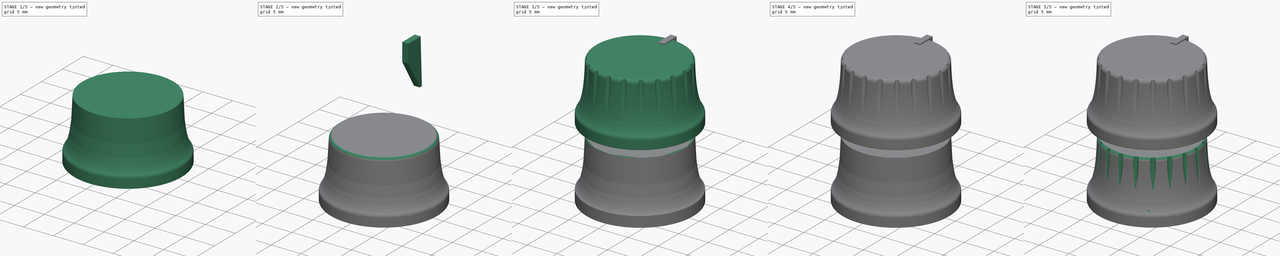
[diagram: build sequence overview — one tinted view per stage of 5, left to right]
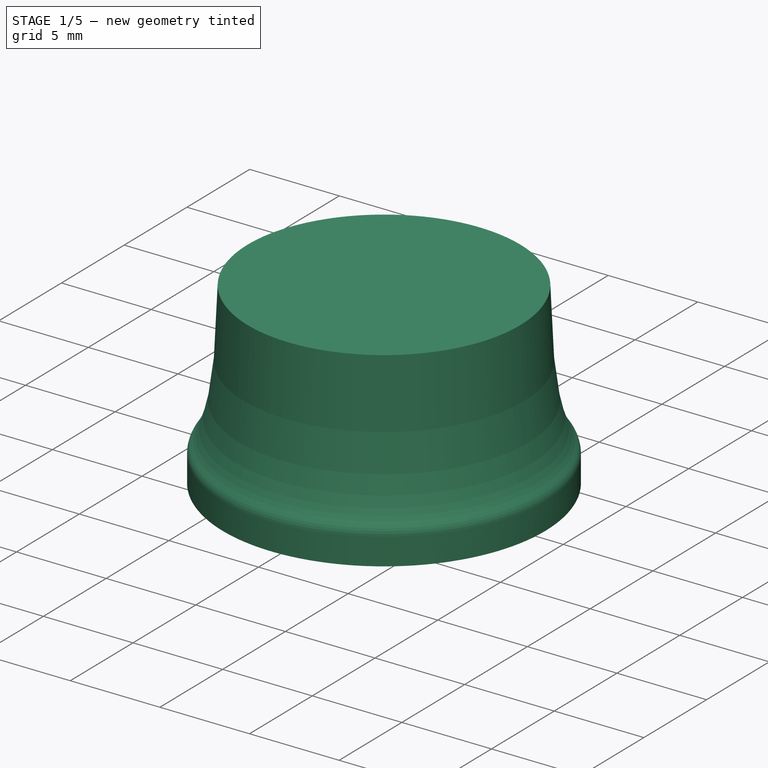
[diagram: stage 1 of 5 — iso view after this stage's code; geometry added in this stage tinted green]
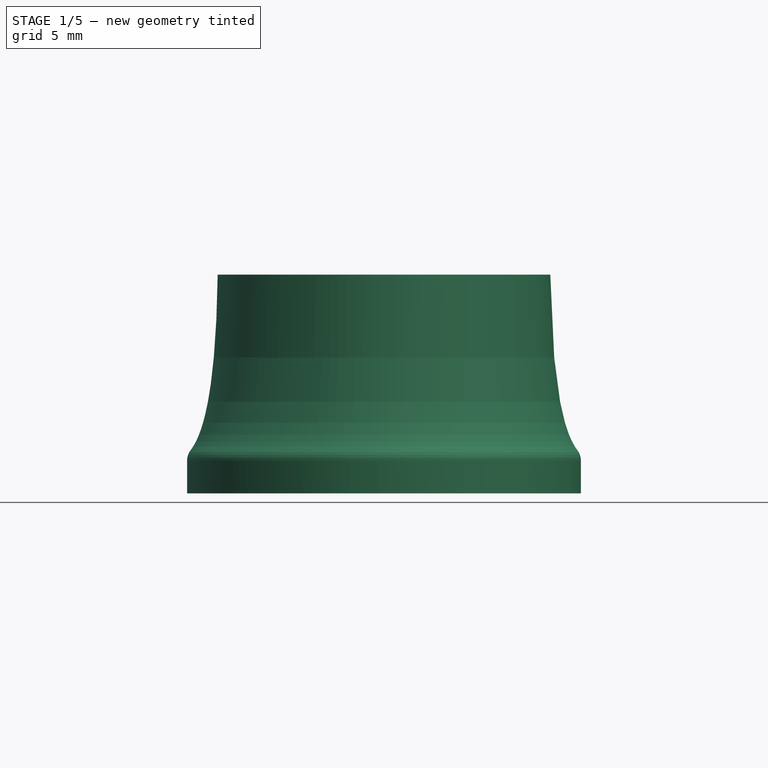
[diagram: stage 1 of 5 — front view after this stage's code; geometry added in this stage tinted green]
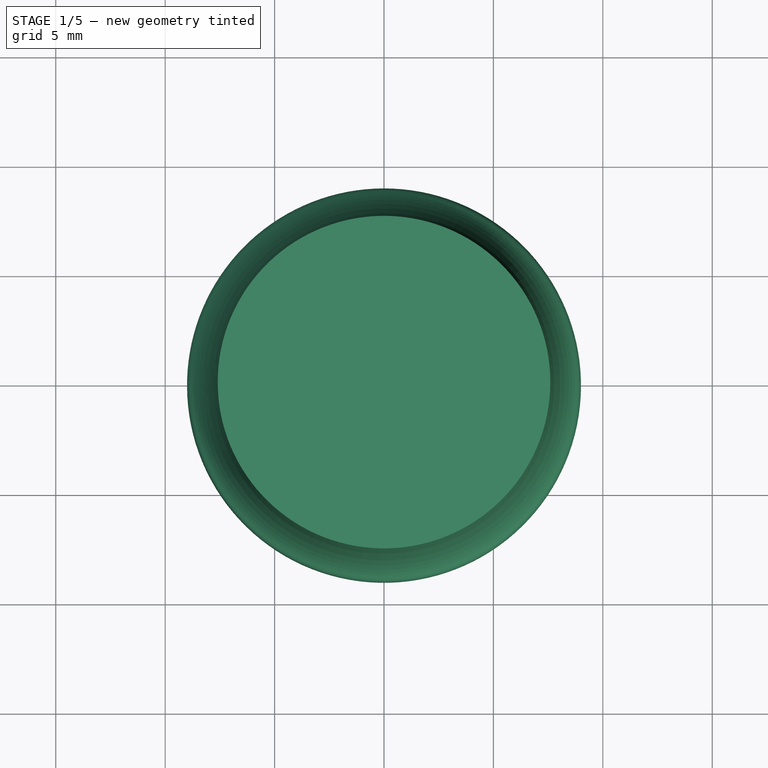
[diagram: stage 1 of 5 — top view after this stage's code; geometry added in this stage tinted green]
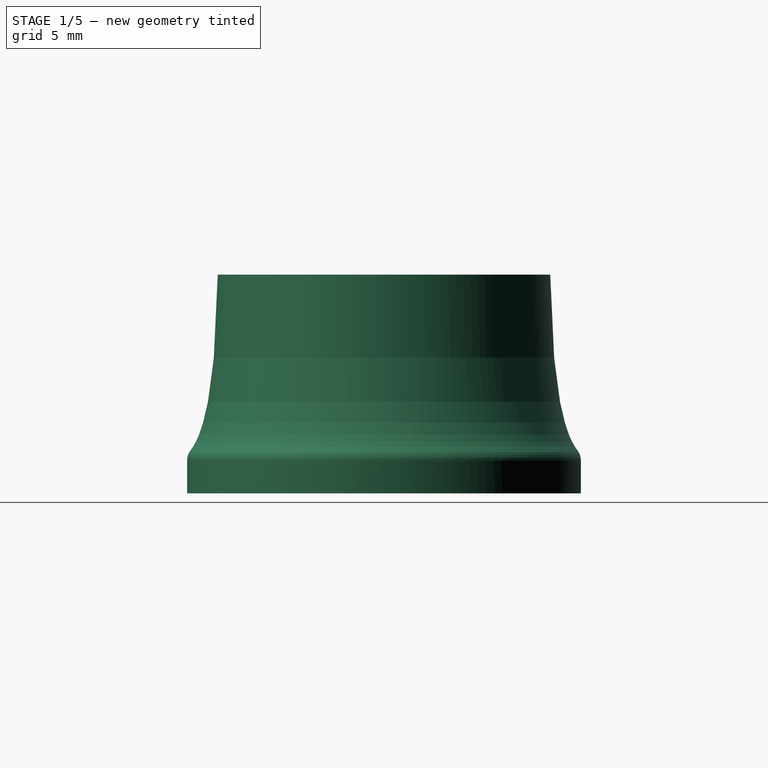
[diagram: stage 1 of 5 — right view after this stage's code; geometry added in this stage tinted green]
FCSTD DOCUMENT  (FreeCAD 0.18R16146 (Git))
Label: PotiCapShortV1_0
License: All rights reserved
LicenseURL: http://en.wikipedia.org/wiki/All_rights_reserved
objects: Sketcher::SketchObject×12, PartDesign::Fillet×12, PartDesign::Pad×8, PartDesign::Plane×5, PartDesign::Body×5, PartDesign::PolarPattern×4, PartDesign::Revolution×2, PartDesign::Line×2, PartDesign::CoordinateSystem×2, PartDesign::Groove×2, Part::Feature×1, Part::Compound×1
note: 68 computed .brp shape members not serialized (recipe doc carries the construction recipe); baked Part::Feature solids carry a one-line shape summary decoded from their .brp

FEATURE [PartDesign::Body] Body002  label="dot"
  Group = -> [Sketch006,Pad003]
  Origin = -> Origin002
  Tip = -> Pad003
FEATURE [Sketcher::SketchObject] Sketch007
  MapMode = 5
  Placement = pos=(0,0,0) rot=(0.57735,0.57735,0.57735;2.0944rad)
  Support = -> [YZ_Plane003]
  sketch-geometry (4):
    g0: LineSegment StartX=-6.9 StartY=9.1 StartZ=0 EndX=-3.7 EndY=9.1 EndZ=0
    g1: LineSegment StartX=-6.9 StartY=9.1 StartZ=0 EndX=-8.2 EndY=1.7 EndZ=0
    g2: LineSegment StartX=-8.2 StartY=1.7 StartZ=0 EndX=-3.7 EndY=1.7 EndZ=0
    g3: LineSegment StartX=-3.7 StartY=9.1 StartZ=0 EndX=-3.7 EndY=1.7 EndZ=0
  constraints (12):
    c: Horizontal(g0)
    c: Coincident(g1,g0)
    c: Coincident(g2,g1)
    c: Horizontal(g2)
    c: Coincident(g3,g0)
    c: Coincident(g3,g2)
    c: Vertical(g3)
    c: DistanceX(g0,g-1) = 3.7
    c: DistanceX(g0,g0) = 3.2
    c: DistanceX(g2,g2) = 4.5
    c: DistanceY(g-1,g0) = 9.1
    c: DistanceY(g3,g3) = 7.4
FEATURE [Sketcher::SketchObject] Sketch008
  MapMode = 5
  Placement = pos=(0,0,0) rot=(1,0,0;1.5708rad)
  Support = -> [XZ_Plane003]
  sketch-geometry (22):
    g0: LineSegment StartX=0 StartY=10 StartZ=0 EndX=-7.6 EndY=10 EndZ=0
    g1: LineSegment StartX=-9 StartY=0 StartZ=0 EndX=-9 EndY=1.8 EndZ=0
    g2: Circle [constr] CenterX=-7.6 CenterY=10 CenterZ=0 NormalX=0 NormalY=0 NormalZ=1 AngleXU=0 Radius=1
    g3: Circle [constr] CenterX=-7.7 CenterY=3 CenterZ=0 NormalX=0 NormalY=0 NormalZ=1 AngleXU=0 Radius=1
    g4: Circle [constr] CenterX=-9 CenterY=1.8 CenterZ=0 NormalX=0 NormalY=0 NormalZ=1 AngleXU=0 Radius=1
    g5: BSplineCurve PolesCount=3 KnotsCount=2 Degree=2 IsPeriodic=0
    g6: GeomPoint [constr] X=-7.6 Y=10 Z=0
    g7: GeomPoint [constr] X=-9 Y=1.8 Z=0
    g8: LineSegment StartX=0 StartY=10 StartZ=0 EndX=0 EndY=9 EndZ=0
    g9: LineSegment StartX=0 StartY=9 StartZ=0 EndX=-6.6 EndY=9 EndZ=0
    g10: Circle [constr] CenterX=-6.6 CenterY=9 CenterZ=0 NormalX=0 NormalY=0 NormalZ=1 AngleXU=0 Radius=0.9
    g11: Circle [constr] CenterX=-6.77152 CenterY=2.62861 CenterZ=0 NormalX=0 NormalY=0 NormalZ=1 AngleXU=0 Radius=0.9
    g12: Circle [constr] CenterX=-8 CenterY=1.4 CenterZ=0 NormalX=0 NormalY=0 NormalZ=1 AngleXU=0 Radius=0.9
    g13: BSplineCurve PolesCount=3 KnotsCount=2 Degree=2 IsPeriodic=0
    g14: GeomPoint [constr] X=-6.6 Y=9 Z=0
    g15: GeomPoint [constr] X=-8 Y=1.4 Z=0
    g16: LineSegment StartX=-9 StartY=0 StartZ=0 EndX=-8 EndY=0 EndZ=0
    g17: LineSegment StartX=-8 StartY=1.4 StartZ=0 EndX=-8 EndY=0 EndZ=0
    g18: LineSegment [constr] StartX=-7.6 StartY=10 StartZ=0 EndX=-6.6 EndY=10 EndZ=0
    g19: LineSegment [constr] StartX=-6.6 StartY=10 StartZ=0 EndX=-6.6 EndY=9 EndZ=0
    g20: LineSegment [constr] StartX=-7.7 StartY=3 StartZ=0 EndX=-6.77152 EndY=2.62861 EndZ=0
    g21: LineSegment [constr] StartX=-9 StartY=1.8 StartZ=0 EndX=-8 EndY=1.4 EndZ=0
  constraints (53):
    c: PointOnObject(g1,g-1)
    c: PointOnObject(g0,g-2)
    c: Horizontal(g0)
    c: DistanceY(g-1,g0) = 10
    c: Vertical(g1)
    c: Coincident(g5,g0)
    c: Radius(g2) = 1
    c: Equal(g2,g3)
    c: Equal(g2,g4)
    c: Coincident(g5,g1)
    c: InternalAlignment(g2,g5)
    c: InternalAlignment(g3,g5)
    c: InternalAlignment(g4,g5)
    c: InternalAlignment(g6,g5)
    c: InternalAlignment(g7,g5)
    c: DistanceX(g1,g-1) = 9
    c: DistanceX(g0,g0) = 7.6
    c: DistanceY(g1,g1) = 1.8
    c: DistanceY(g3) = 3
    c: DistanceX(g3,g-1) = 7.7
    c: Coincident(g0,g8)
    c: Vertical(g8)
    c: Coincident(g8,g9)
    c: Horizontal(g9)
    c: Coincident(g13,g9)
    c: Radius(g10) = 0.9
    c: Equal(g10,g11)
    c: Equal(g10,g12)
    c: InternalAlignment(g10,g13)
    c: InternalAlignment(g11,g13)
    c: InternalAlignment(g12,g13)
    c: InternalAlignment(g14,g13)
    c: InternalAlignment(g15,g13)
    c: Coincident(g16,g1)
    c: Horizontal(g16)
    c: Coincident(g17,g13)
    c: Coincident(g17,g16)
    c: Vertical(g17)
    c: DistanceX(g16,g16) = 1
    c: Equal(g8,g16)
    c: Coincident(g18,g0)
    c: Equal(g18,g8)
    c: Coincident(g18,g19)
    c: Coincident(g19,g9)
    c: Vertical(g19)
    c: Horizontal(g18)
    c: Coincident(g20,g3)
    c: Coincident(g20,g11)
    c: Equal(g8,g20)
    c: DistanceY(g17,g17) = 1.4
    c: Coincident(g21,g1)
    c: Coincident(g21,g13)
    c: Parallel(g20,g21)
FEATURE [PartDesign::Revolution] Revolution001
  Angle = 360
  Axis = (0,-2e-16,1)
  Base = (0,0,0)
  Placement = pos=(0,0,0) rot=(1,0,0;1.5708rad)
  Profile = -> Sketch008
  ReferenceAxis = -> Sketch008 [V_Axis]
FEATURE [PartDesign::Body] Body004  label="dot001"
  Group = -> [Sketch012,Pad007]
  Origin = -> Origin004
  Tip = -> Pad007
FEATURE [PartDesign::Fillet] Fillet008
  Base = -> Revolution001 [Edge2]
  BaseFeature = -> Revolution001
  Placement = pos=(0,0,0) rot=(1,0,0;1.5708rad)
  Radius = 0.8
FEATURE [PartDesign::Pad] Pad006
  BaseFeature = -> Fillet008
  Length = 8.7
  Length2 = 100
  Placement = pos=(0,0,0) rot=(1,0,0;1.5708rad)
  Profile = -> Sketch010
  Type = 0
FEATURE [Sketcher::SketchObject] Sketch009
  MapMode = 5
  Placement = pos=(0,0,9) rot=(1,0,0;3.14159rad)
  Support = -> [Pad006]
  sketch-geometry (7):
    g0: LineSegment StartX=-2.6269 StartY=1.5 StartZ=0 EndX=2.6269 EndY=1.5 EndZ=0
    g1: GeomPoint X=0 Y=-3 Z=0
    g2: ArcOfCircle CenterX=0 CenterY=0 CenterZ=0 NormalX=0 NormalY=0 NormalZ=1 AngleXU=0 Radius=3.025 StartAngle=1.73685 EndAngle=2.62276
    g3: ArcOfCircle CenterX=0 CenterY=0 CenterZ=0 NormalX=0 NormalY=0 NormalZ=1 AngleXU=0 Radius=3.025 StartAngle=0.518834 EndAngle=1.40475
    g4: LineSegment StartX=-0.5 StartY=2.98339 StartZ=0 EndX=-0.5 EndY=3.99382 EndZ=0
    g5: LineSegment StartX=0.5 StartY=2.98339 StartZ=0 EndX=0.5 EndY=3.99382 EndZ=0
    g6: ArcOfCircle CenterX=0 CenterY=0 CenterZ=0 NormalX=0 NormalY=0 NormalZ=1 AngleXU=0 Radius=4.025 StartAngle=1.44625 EndAngle=1.69534
  constraints (20):
    c: Horizontal(g0)
    c: PointOnObject(g1,g-2)
    c: DistanceY(g1,g0) = 4.5
    c: Coincident(g2,g-1)
    c: Coincident(g2,g0)
    c: Coincident(g3,g2)
    c: Coincident(g3,g0)
    c: Coincident(g4,g2)
    c: Vertical(g4)
    c: Coincident(g5,g3)
    c: Vertical(g5)
    c: Coincident(g6,g2)
    c: Coincident(g6,g4)
    c: Diameter(g6) = 8.05
    c: Diameter(g3) = 6.05
    c: Equal(g3,g2)
    c: Equal(g4,g5)
    c: Coincident(g5,g6)
    c: DistanceX(g4,g5) = 1
    c: DistanceY(g1,g2) = 3
FEATURE [PartDesign::Pad] Pad005
  BaseFeature = -> Pad006
  Length = 7.77
  Length2 = 100
  Placement = pos=(0,0,0) rot=(1,0,0;1.5708rad)
  Profile = -> Sketch009
  Type = 0
FEATURE [PartDesign::Pad] Pad004
  BaseFeature = -> Pad005
  Length = 0.8
  Length2 = 0.5
  Midplane = true
  Placement = pos=(0,0,0) rot=(1,0,0;1.5708rad)
  Profile = -> Sketch007
  Type = 0
FEATURE [PartDesign::PolarPattern] PolarPattern003
  Angle = 360
  Axis = -> Z_Axis003
  BaseFeature = -> Pad004
  Occurrences = 7
  Originals = -> [Pad004]
  Placement = pos=(0,0,0) rot=(1,0,0;1.5708rad)
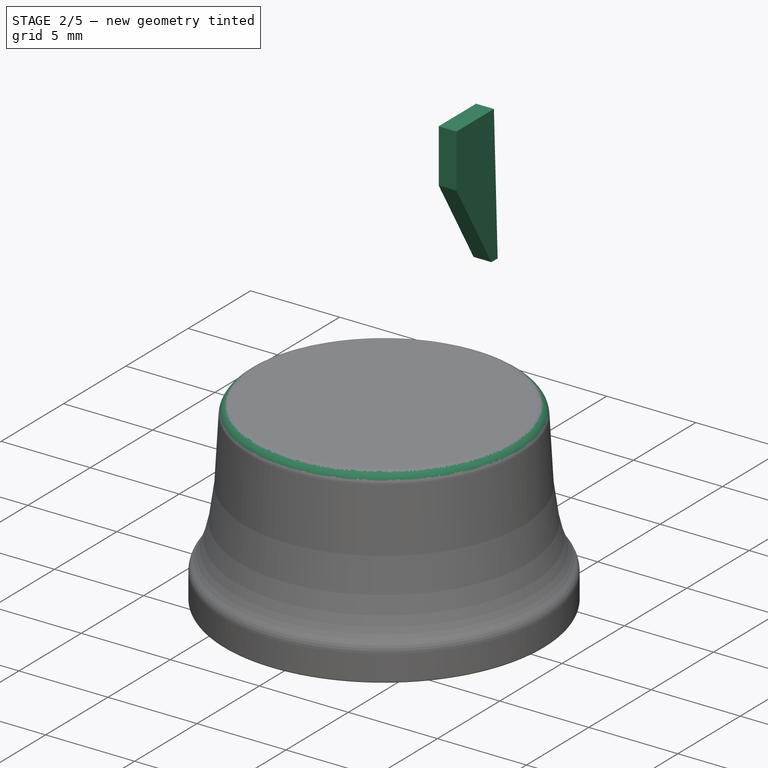
[diagram: stage 2 of 5 — iso view after this stage's code; geometry added in this stage tinted green]
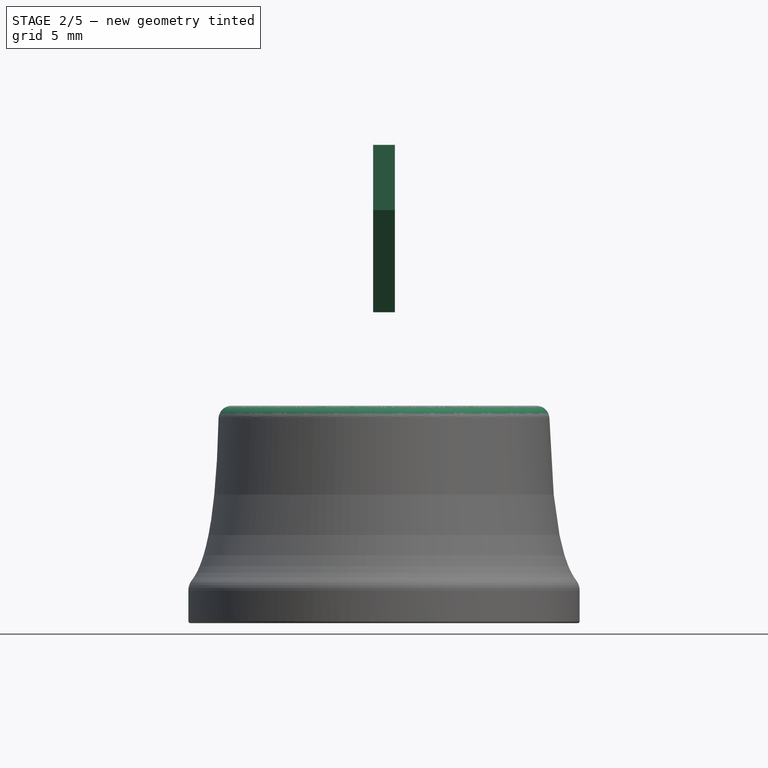
[diagram: stage 2 of 5 — front view after this stage's code; geometry added in this stage tinted green]
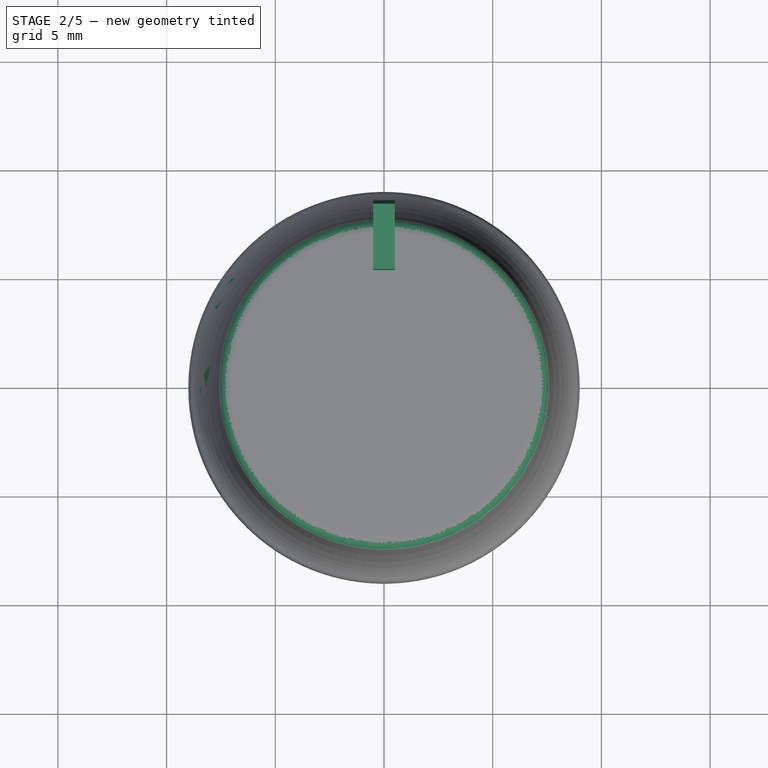
[diagram: stage 2 of 5 — top view after this stage's code; geometry added in this stage tinted green]
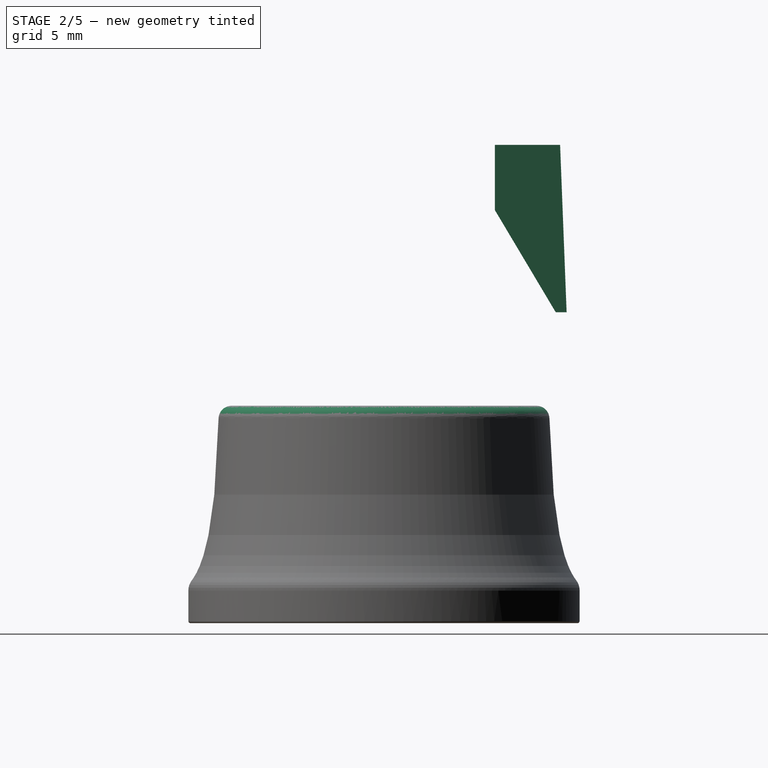
[diagram: stage 2 of 5 — right view after this stage's code; geometry added in this stage tinted green]
FEATURE [PartDesign::Line] DatumLine001
  AttacherType = Attacher::AttachEngineLine
  AttachmentOffset = pos=(0,9.1,0) rot=(1,0,0;0.139626rad)
  MapMode = 42
  Placement = pos=(3.79193e-08,9.1,0) rot=(1,0,0;0.139626rad)
FEATURE [Sketcher::SketchObject] Sketch010
  MapMode = 5
  Placement = pos=(0,0,9) rot=(1,0,0;3.14159rad)
  Support = -> [Revolution001]
  sketch-geometry (10):
    g0: LineSegment StartX=-0.5 StartY=3.99382 StartZ=0 EndX=-0.5 EndY=2.98339 EndZ=0
    g1: LineSegment StartX=0.5 StartY=3.99382 StartZ=0 EndX=0.5 EndY=2.98339 EndZ=0
    g2: LineSegment StartX=-0.5 StartY=-2.98339 StartZ=0 EndX=-0.5 EndY=-3.99382 EndZ=0
    g3: LineSegment StartX=0.5 StartY=-2.98339 StartZ=0 EndX=0.5 EndY=-3.99382 EndZ=0
    g4: ArcOfCircle CenterX=0 CenterY=0 CenterZ=0 NormalX=0 NormalY=0 NormalZ=1 AngleXU=0 Radius=3.025 StartAngle=1.73685 EndAngle=4.54634
    g5: ArcOfCircle CenterX=0 CenterY=0 CenterZ=0 NormalX=0 NormalY=0 NormalZ=1 AngleXU=0 Radius=4.025 StartAngle=1.69534 EndAngle=4.58784
    g6: ArcOfCircle CenterX=0 CenterY=0 CenterZ=0 NormalX=0 NormalY=0 NormalZ=1 AngleXU=0 Radius=3.025 StartAngle=4.87844 EndAngle=7.68793
    g7: ArcOfCircle CenterX=0 CenterY=0 CenterZ=0 NormalX=0 NormalY=0 NormalZ=1 AngleXU=0 Radius=4.025 StartAngle=4.83693 EndAngle=7.72944
    g8: LineSegment [constr] StartX=-0.5 StartY=3.99382 StartZ=0 EndX=0.5 EndY=3.99382 EndZ=0
    g9: LineSegment [constr] StartX=-0.5 StartY=-3.99382 StartZ=0 EndX=0.5 EndY=-3.99382 EndZ=0
  constraints (28):
    c: Vertical(g0)
    c: Vertical(g1)
    c: Vertical(g3)
    c: Vertical(g2)
    c: Coincident(g4,g-1)
    c: Coincident(g4,g0)
    c: Coincident(g4,g2)
    c: Coincident(g5,g4)
    c: Coincident(g5,g0)
    c: Coincident(g5,g2)
    c: Coincident(g6,g4)
    c: Coincident(g6,g1)
    c: Coincident(g6,g3)
    c: Coincident(g7,g4)
    c: Coincident(g7,g3)
    c: Coincident(g7,g1)
    c: Diameter(g7) = 8.05
    c: Diameter(g6) = 6.05
    c: Equal(g7,g5)
    c: Equal(g6,g4)
    c: Coincident(g8,g0)
    c: Coincident(g8,g1)
    c: Horizontal(g8)
    c: DistanceX(g8,g8) = 1
    c: Coincident(g9,g5)
    c: Coincident(g9,g7)
    c: Horizontal(g9)
    c: Equal(g8,g9)
FEATURE [PartDesign::Plane] DatumPlane004
  Length = 27.1066
  MapMode = 4
  Placement = pos=(3.79193e-08,9.1,-2e-16) rot=(0.602403,0.523661,0.602403;2.1768rad)
  ResizeMode = 0
  Support = -> [DatumLine001]
  Width = 27.1066
FEATURE [PartDesign::CoordinateSystem] Local_CS001
  AttacherType = Attacher::AttachEngine3D
  MapMode = 2
  Placement = pos=(3.79193e-08,9.1,-2e-16) rot=(1,0,0;0.139626rad)
  Support = -> [DatumLine001]
FEATURE [Sketcher::SketchObject] Sketch011
  MapMode = 5
  Placement = pos=(3.79193e-08,9.1,-2e-16) rot=(0.602403,0.523661,0.602403;2.1768rad)
  Support = -> [DatumPlane004]
  sketch-geometry (8):
    g0: LineSegment StartX=0 StartY=2.1 StartZ=0 EndX=0 EndY=10.1 EndZ=0
    g1: LineSegment StartX=0 StartY=10.1 StartZ=0 EndX=-0.4 EndY=10.1 EndZ=0
    g2: Circle [constr] CenterX=-0.4 CenterY=10.1 CenterZ=0 NormalX=0 NormalY=0 NormalZ=1 AngleXU=0 Radius=0.9
    g3: Circle [constr] CenterX=-0.8 CenterY=3.9 CenterZ=0 NormalX=0 NormalY=0 NormalZ=1 AngleXU=0 Radius=0.9
    g4: Circle [constr] CenterX=0 CenterY=2.1 CenterZ=0 NormalX=0 NormalY=0 NormalZ=1 AngleXU=0 Radius=0.9
    g5: BSplineCurve PolesCount=3 KnotsCount=2 Degree=2 IsPeriodic=0
    g6: GeomPoint [constr] X=-0.4 Y=10.1 Z=0
    g7: GeomPoint [constr] X=0 Y=2.1 Z=0
  constraints (19):
    c: PointOnObject(g0,g-2)
    c: PointOnObject(g0,g-2)
    c: Coincident(g1,g0)
    c: Horizontal(g1)
    c: Coincident(g5,g1)
    c: Radius(g2) = 0.9
    c: Equal(g2,g3)
    c: Equal(g2,g4)
    c: InternalAlignment(g2,g5)
    c: InternalAlignment(g3,g5)
    c: InternalAlignment(g4,g5)
    c: InternalAlignment(g6,g5)
    c: InternalAlignment(g7,g5)
    c: Coincident(g5,g0)
    c: DistanceX(g1,g1) = 0.4
    c: DistanceY(g0,g0) = 8
    c: DistanceY(g-1,g0) = 2.1
    c: DistanceY(g-1,g3) = 3.9
    c: DistanceX(g3,g-1) = 0.8
FEATURE [Sketcher::SketchObject] Sketch012
  MapMode = 5
  Placement = pos=(0,0,0) rot=(0.57735,0.57735,0.57735;2.0944rad)
  Support = -> [YZ_Plane004]
  sketch-geometry (5):
    g0: LineSegment StartX=5.1 StartY=22 StartZ=0 EndX=8.1 EndY=22 EndZ=0
    g1: LineSegment StartX=5.1 StartY=22 StartZ=0 EndX=5.1 EndY=19 EndZ=0
    g2: LineSegment StartX=5.1 StartY=19 StartZ=0 EndX=7.9 EndY=14.3 EndZ=0
    g3: LineSegment StartX=7.9 StartY=14.3 StartZ=0 EndX=8.4 EndY=14.3 EndZ=0
    g4: LineSegment StartX=8.4 StartY=14.3 StartZ=0 EndX=8.1 EndY=22 EndZ=0
  constraints (15):
    c: Horizontal(g0)
    c: Coincident(g0,g1)
    c: Coincident(g1,g2)
    c: Coincident(g3,g4)
    c: Coincident(g4,g0)
    c: Coincident(g3,g2)
    c: DistanceY(g-1,g0) = 22
    c: Horizontal(g3)
    c: DistanceY(g-1,g3) = 14.3
    c: DistanceX(g3,g3) = 0.5
    c: DistanceX(g0,g0) = 3
    c: DistanceX(g-1,g0) = 8.1
    c: Vertical(g1)
    c: DistanceY(g1,g1) = 3
    c: DistanceX(g-1,g3) = 8.4
FEATURE [PartDesign::Pad] Pad007
  Length = 1
  Length2 = 100
  Midplane = true
  Placement = pos=(0,0,0) rot=(0.57735,0.57735,0.57735;2.0944rad)
  Profile = -> Sketch012
  Type = 0
FEATURE [PartDesign::Fillet] Fillet009
  Base = -> PolarPattern003 [Edge21,Edge17,Edge19,Edge15,Edge27,Edge25,Edge39,Edge37,Edge35,Edge29,Edge31,Edge33,Edge11,Edge13,Edge34,Edge30,Edge26,Edge20,Edge38,Edge16,Edge12]
  BaseFeature = -> PolarPattern003
  Placement = pos=(0,0,0) rot=(1,0,0;1.5708rad)
  Radius = 0.3
FEATURE [PartDesign::Fillet] Fillet010
  Base = -> Fillet009 [Edge151,Edge149,Edge150,Edge152,Edge153,Edge154,Edge156,Edge157,Edge155,Edge129,Edge128,Edge130,Edge132,Edge131,Edge133,Edge134,Edge135,Edge127,Face10,Face18,Face30,Face17,Edge55,Face1]
  BaseFeature = -> Fillet009
  Placement = pos=(0,0,0) rot=(1,0,0;1.5708rad)
  Radius = 0.4
FEATURE [PartDesign::Fillet] Fillet011
  Base = -> Fillet010 [Edge348]
  BaseFeature = -> Fillet010
  Placement = pos=(0,0,0) rot=(1,0,0;1.5708rad)
  Radius = 0.6
FEATURE [PartDesign::Fillet] Fillet006
  Base = -> Fillet011 [Edge9]
  BaseFeature = -> Fillet011
  Placement = pos=(0,0,0) rot=(1,0,0;1.5708rad)
  Radius = 0.1
FEATURE [PartDesign::Fillet] Fillet007
  Base = -> Fillet006 [Edge8]
  BaseFeature = -> Fillet006
  Placement = pos=(0,0,0) rot=(1,0,0;1.5708rad)
  Radius = 0.2
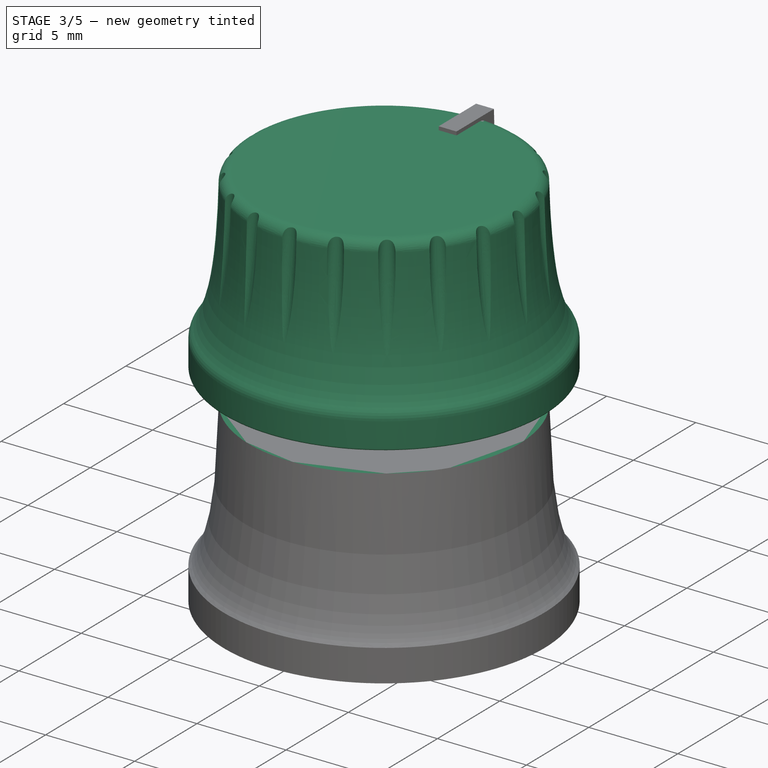
[diagram: stage 3 of 5 — iso view after this stage's code; geometry added in this stage tinted green]
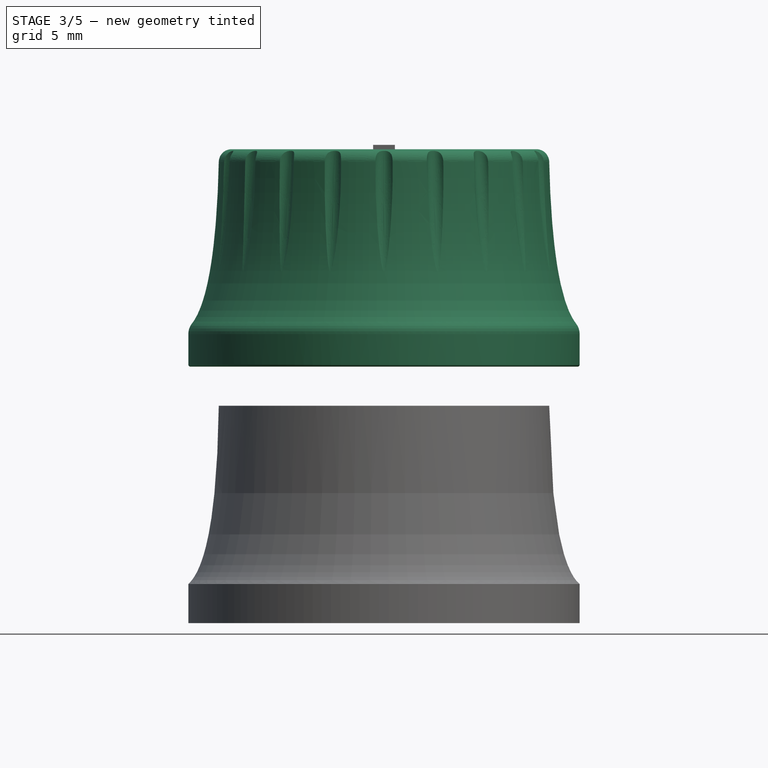
[diagram: stage 3 of 5 — front view after this stage's code; geometry added in this stage tinted green]
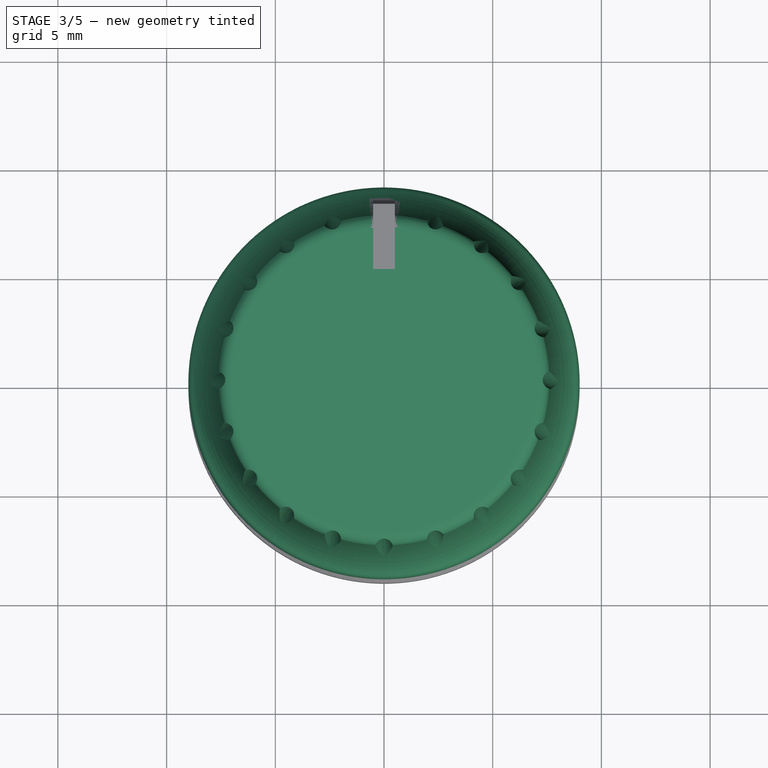
[diagram: stage 3 of 5 — top view after this stage's code; geometry added in this stage tinted green]
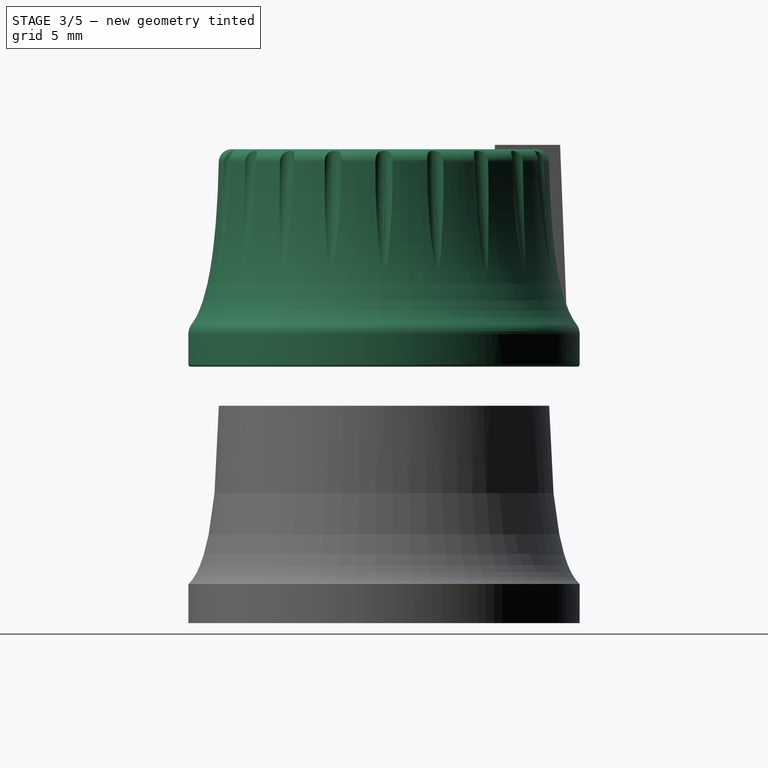
[diagram: stage 3 of 5 — right view after this stage's code; geometry added in this stage tinted green]
FEATURE [Sketcher::SketchObject] Sketch
  MapMode = 5
  Placement = pos=(0,0,0) rot=(1,0,0;1.5708rad)
  Support = -> [XZ_Plane]
  sketch-geometry (22):
    g0: LineSegment StartX=0 StartY=10 StartZ=0 EndX=-7.6 EndY=10 EndZ=0
    g1: LineSegment StartX=-9 StartY=0 StartZ=0 EndX=-9 EndY=1.8 EndZ=0
    g2: Circle [constr] CenterX=-7.6 CenterY=10 CenterZ=0 NormalX=0 NormalY=0 NormalZ=1 AngleXU=0 Radius=1
    g3: Circle [constr] CenterX=-7.7 CenterY=3 CenterZ=0 NormalX=0 NormalY=0 NormalZ=1 AngleXU=0 Radius=1
    g4: Circle [constr] CenterX=-9 CenterY=1.8 CenterZ=0 NormalX=0 NormalY=0 NormalZ=1 AngleXU=0 Radius=1
    g5: BSplineCurve PolesCount=3 KnotsCount=2 Degree=2 IsPeriodic=0
    g6: GeomPoint [constr] X=-7.6 Y=10 Z=0
    g7: GeomPoint [constr] X=-9 Y=1.8 Z=0
    g8: LineSegment StartX=0 StartY=10 StartZ=0 EndX=0 EndY=9 EndZ=0
    g9: LineSegment StartX=0 StartY=9 StartZ=0 EndX=-6.6 EndY=9 EndZ=0
    g10: Circle [constr] CenterX=-6.6 CenterY=9 CenterZ=0 NormalX=0 NormalY=0 NormalZ=1 AngleXU=0 Radius=0.9
    g11: Circle [constr] CenterX=-6.77152 CenterY=2.62861 CenterZ=0 NormalX=0 NormalY=0 NormalZ=1 AngleXU=0 Radius=0.9
    g12: Circle [constr] CenterX=-8 CenterY=1.4 CenterZ=0 NormalX=0 NormalY=0 NormalZ=1 AngleXU=0 Radius=0.9
    g13: BSplineCurve PolesCount=3 KnotsCount=2 Degree=2 IsPeriodic=0
    g14: GeomPoint [constr] X=-6.6 Y=9 Z=0
    g15: GeomPoint [constr] X=-8 Y=1.4 Z=0
    g16: LineSegment StartX=-9 StartY=0 StartZ=0 EndX=-8 EndY=0 EndZ=0
    g17: LineSegment StartX=-8 StartY=1.4 StartZ=0 EndX=-8 EndY=0 EndZ=0
    g18: LineSegment [constr] StartX=-7.6 StartY=10 StartZ=0 EndX=-6.6 EndY=10 EndZ=0
    g19: LineSegment [constr] StartX=-6.6 StartY=10 StartZ=0 EndX=-6.6 EndY=9 EndZ=0
    g20: LineSegment [constr] StartX=-7.7 StartY=3 StartZ=0 EndX=-6.77152 EndY=2.62861 EndZ=0
    g21: LineSegment [constr] StartX=-9 StartY=1.8 StartZ=0 EndX=-8 EndY=1.4 EndZ=0
  constraints (53):
    c: PointOnObject(g1,g-1)
    c: PointOnObject(g0,g-2)
    c: Horizontal(g0)
    c: DistanceY(g-1,g0) = 10
    c: Vertical(g1)
    c: Coincident(g5,g0)
    c: Radius(g2) = 1
    c: Equal(g2,g3)
    c: Equal(g2,g4)
    c: Coincident(g5,g1)
    c: InternalAlignment(g2,g5)
    c: InternalAlignment(g3,g5)
    c: InternalAlignment(g4,g5)
    c: InternalAlignment(g6,g5)
    c: InternalAlignment(g7,g5)
    c: DistanceX(g1,g-1) = 9
    c: DistanceX(g0,g0) = 7.6
    c: DistanceY(g1,g1) = 1.8
    c: DistanceY(g3) = 3
    c: DistanceX(g3,g-1) = 7.7
    c: Coincident(g0,g8)
    c: Vertical(g8)
    c: Coincident(g8,g9)
    c: Horizontal(g9)
    c: Coincident(g13,g9)
    c: Radius(g10) = 0.9
    c: Equal(g10,g11)
    c: Equal(g10,g12)
    c: InternalAlignment(g10,g13)
    c: InternalAlignment(g11,g13)
    c: InternalAlignment(g12,g13)
    c: InternalAlignment(g14,g13)
    c: InternalAlignment(g15,g13)
    c: Coincident(g16,g1)
    c: Horizontal(g16)
    c: Coincident(g17,g13)
    c: Coincident(g17,g16)
    c: Vertical(g17)
    c: DistanceX(g16,g16) = 1
    c: Equal(g8,g16)
    c: Coincident(g18,g0)
    c: Equal(g18,g8)
    c: Coincident(g18,g19)
    c: Coincident(g19,g9)
    c: Vertical(g19)
    c: Horizontal(g18)
    c: Coincident(g20,g3)
    c: Coincident(g20,g11)
    c: Equal(g8,g20)
    c: DistanceY(g17,g17) = 1.4
    c: Coincident(g21,g1)
    c: Coincident(g21,g13)
    c: Parallel(g20,g21)
FEATURE [PartDesign::Revolution] Revolution
  Angle = 360
  Axis = (0,-2e-16,1)
  Base = (0,0,0)
  Placement = pos=(0,0,0) rot=(1,0,0;1.5708rad)
  Profile = -> Sketch
  ReferenceAxis = -> Sketch [V_Axis]
FEATURE [PartDesign::Body] Body  label="Gehäuse"
  Group = -> [Sketch,Revolution,Fillet,Sketch001,Pad,Sketch002,Pad001,Sketch003,Pad002,PolarPattern,Fillet001,Fillet002,Fillet003,Fillet004,Fillet005,DatumLine,Local_CS,DatumPlane003,Sketch005,Groove,PolarPattern001]
  Origin = -> Origin
  Placement = pos=(0,0,11.8) rot=(0,0,1;0rad)
  Tip = -> PolarPattern001
FEATURE [Sketcher::SketchObject] Sketch006
  MapMode = 5
  Placement = pos=(0,0,0) rot=(0.57735,0.57735,0.57735;2.0944rad)
  Support = -> [YZ_Plane002]
  sketch-geometry (5):
    g0: LineSegment StartX=5.1 StartY=22 StartZ=0 EndX=8.1 EndY=22 EndZ=0
    g1: LineSegment StartX=5.1 StartY=22 StartZ=0 EndX=5.1 EndY=19 EndZ=0
    g2: LineSegment StartX=5.1 StartY=19 StartZ=0 EndX=7.9 EndY=14.3 EndZ=0
    g3: LineSegment StartX=7.9 StartY=14.3 StartZ=0 EndX=8.4 EndY=14.3 EndZ=0
    g4: LineSegment StartX=8.4 StartY=14.3 StartZ=0 EndX=8.1 EndY=22 EndZ=0
  constraints (15):
    c: Horizontal(g0)
    c: Coincident(g0,g1)
    c: Coincident(g1,g2)
    c: Coincident(g3,g4)
    c: Coincident(g4,g0)
    c: Coincident(g3,g2)
    c: DistanceY(g-1,g0) = 22
    c: Horizontal(g3)
    c: DistanceY(g-1,g3) = 14.3
    c: DistanceX(g3,g3) = 0.5
    c: DistanceX(g0,g0) = 3
    c: DistanceX(g-1,g0) = 8.1
    c: Vertical(g1)
    c: DistanceY(g1,g1) = 3
    c: DistanceX(g-1,g3) = 8.4
FEATURE [PartDesign::Pad] Pad003
  Length = 1
  Length2 = 100
  Midplane = true
  Placement = pos=(0,0,0) rot=(0.57735,0.57735,0.57735;2.0944rad)
  Profile = -> Sketch006
  Type = 0
FEATURE [PartDesign::Groove] Groove001
  Angle = 360
  Axis = (0,-0.139173,0.990268)
  Base = (3.79193e-08,9.1,0)
  BaseFeature = -> Fillet007
  Placement = pos=(0,0,0) rot=(1,0,0;1.5708rad)
  Profile = -> Sketch011
  ReferenceAxis = -> DatumLine001
  Reversed = true
FEATURE [PartDesign::PolarPattern] PolarPattern002
  Angle = 360
  Axis = -> Z_Axis003
  BaseFeature = -> Groove001
  Occurrences = 20
  Originals = -> [Groove001]
  Placement = pos=(0,0,0) rot=(1,0,0;1.5708rad)
FEATURE [PartDesign::Body] Body003  label="Gehäuse001"
  Group = -> [Sketch008,Revolution001,Fillet008,Sketch010,Pad006,Sketch009,Pad005,Sketch007,Pad004,PolarPattern003,Fillet009,Fillet010,Fillet011,Fillet006,Fillet007,DatumLine001,Local_CS001,DatumPlane004,Sketch011,Groove001,PolarPattern002]
  Origin = -> Origin003
  Placement = pos=(0,0,11.8) rot=(0,0,1;0rad)
  Tip = -> PolarPattern002
FEATURE [Part::Compound] Compound  label="Knob"
  Links = -> [Body003,Body004]
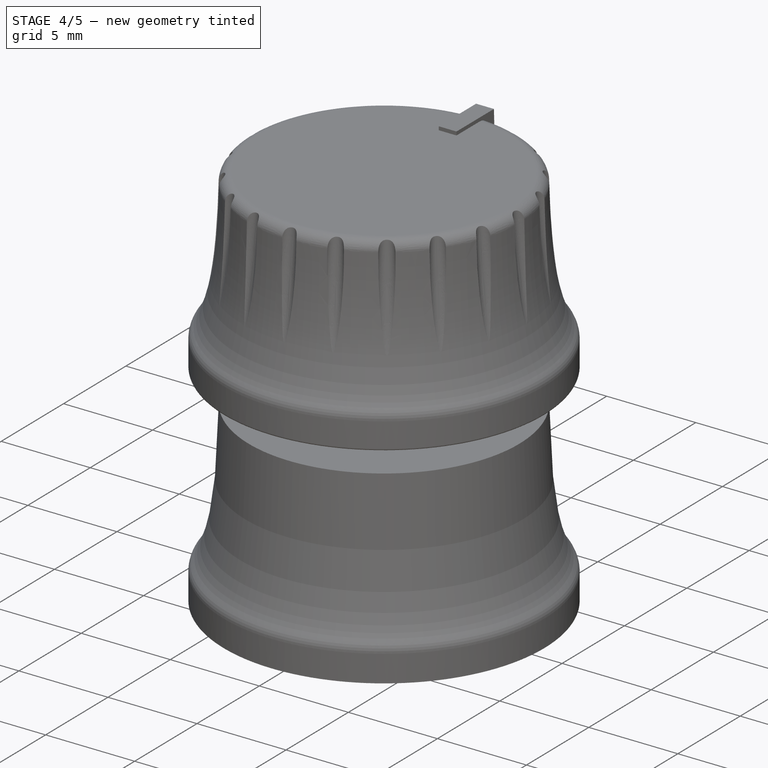
[diagram: stage 4 of 5 — iso view after this stage's code; geometry added in this stage tinted green]
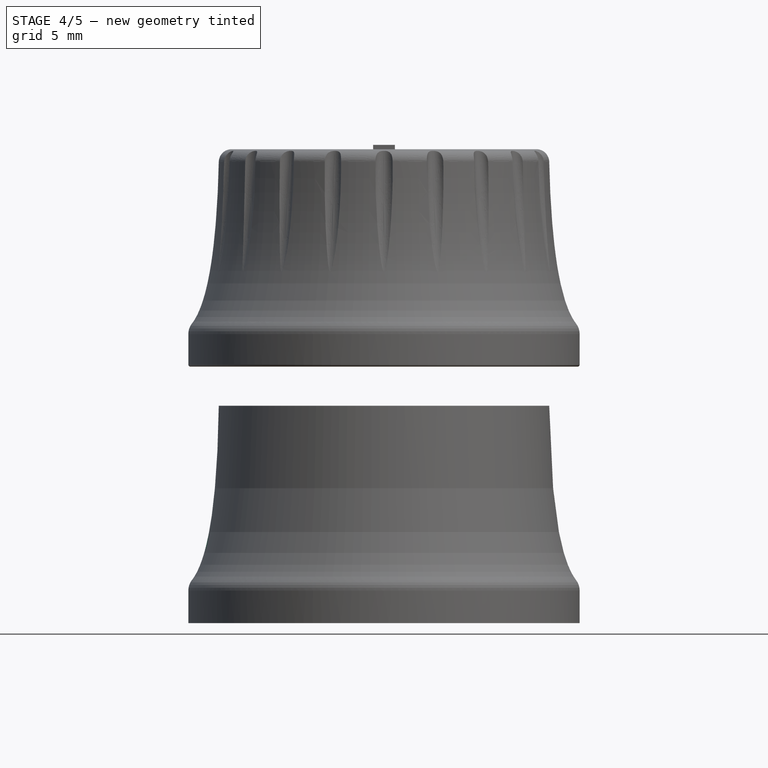
[diagram: stage 4 of 5 — front view after this stage's code; geometry added in this stage tinted green]
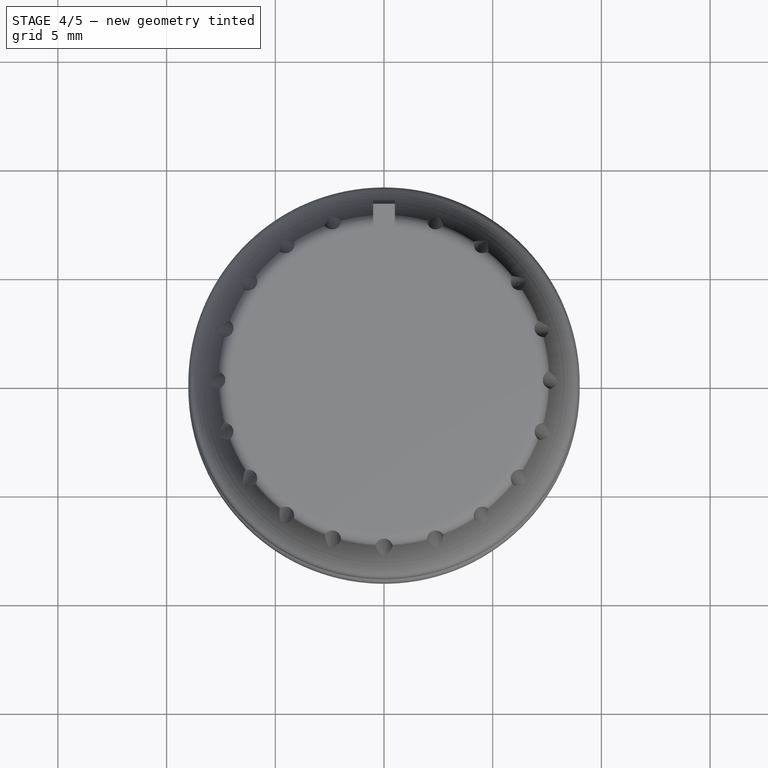
[diagram: stage 4 of 5 — top view after this stage's code; geometry added in this stage tinted green]
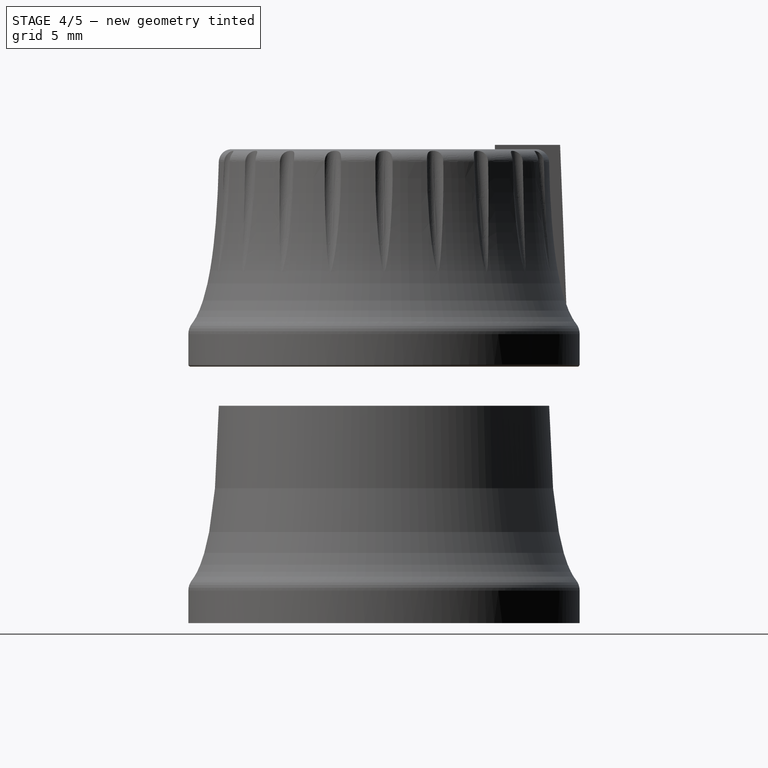
[diagram: stage 4 of 5 — right view after this stage's code; geometry added in this stage tinted green]
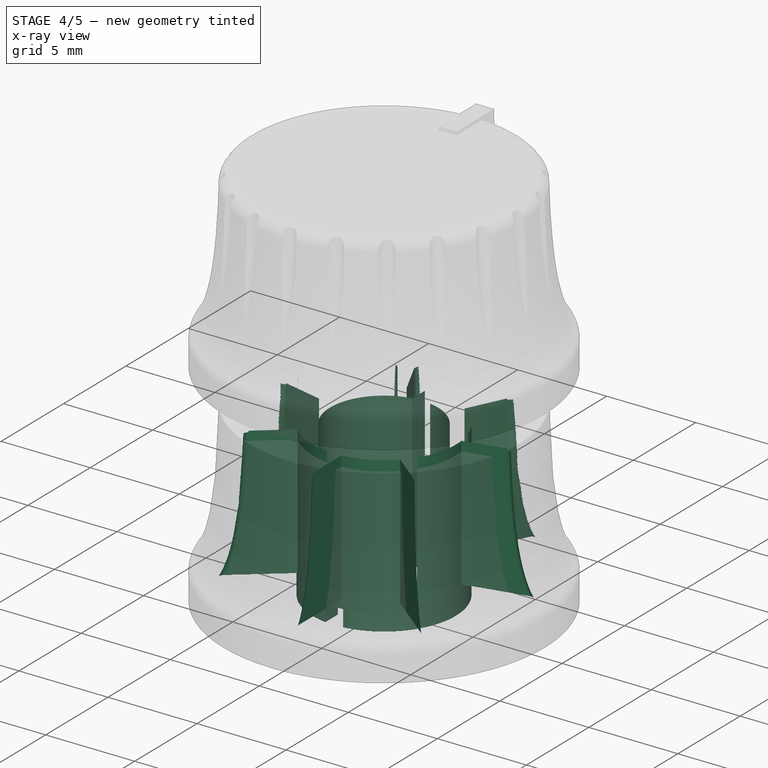
[diagram: stage 4 of 5 — x-ray composite at the iso view; earlier geometry ghosted, this stage's added geometry solid]
FEATURE [PartDesign::Fillet] Fillet
  Base = -> Revolution [Edge2]
  BaseFeature = -> Revolution
  Placement = pos=(0,0,0) rot=(1,0,0;1.5708rad)
  Radius = 0.8
FEATURE [PartDesign::Plane] DatumPlane  label="Platine OK"
  Length = 24
  MapMode = 2
  ResizeMode = 0
  Width = 24
FEATURE [PartDesign::Plane] DatumPlane001  label="FaceplateUK"
  Length = 24
  MapMode = 2
  Placement = pos=(0,0,10) rot=(0,0,1;0rad)
  ResizeMode = 0
  Width = 24
FEATURE [PartDesign::Plane] DatumPlane002  label="FaceplateOK"
  Length = 24
  MapMode = 2
  Placement = pos=(0,0,11.5) rot=(0,0,1;0rad)
  ResizeMode = 0
  Width = 24
FEATURE [PartDesign::Body] Body001  label="Platine"
  Group = -> [DatumPlane,DatumPlane001,DatumPlane002]
  Origin = -> Origin001
FEATURE [Part::Feature] Part__Feature  label="RK09D1130-F20"
  Placement = pos=(-1e-15,0,6.5) rot=(0,1,0;3.14159rad)
  shape: bbox 11.45 x 12.65 x 25.3 mm, 332 faces (baked)
FEATURE [Sketcher::SketchObject] Sketch001
  MapMode = 5
  Placement = pos=(0,0,9) rot=(1,0,0;3.14159rad)
  Support = -> [Revolution]
  sketch-geometry (10):
    g0: LineSegment StartX=-0.5 StartY=3.99382 StartZ=0 EndX=-0.5 EndY=2.98339 EndZ=0
    g1: LineSegment StartX=0.5 StartY=3.99382 StartZ=0 EndX=0.5 EndY=2.98339 EndZ=0
    g2: LineSegment StartX=-0.5 StartY=-2.98339 StartZ=0 EndX=-0.5 EndY=-3.99382 EndZ=0
    g3: LineSegment StartX=0.5 StartY=-2.98339 StartZ=0 EndX=0.5 EndY=-3.99382 EndZ=0
    g4: ArcOfCircle CenterX=0 CenterY=0 CenterZ=0 NormalX=0 NormalY=0 NormalZ=1 AngleXU=0 Radius=3.025 StartAngle=1.73685 EndAngle=4.54634
    g5: ArcOfCircle CenterX=0 CenterY=0 CenterZ=0 NormalX=0 NormalY=0 NormalZ=1 AngleXU=0 Radius=4.025 StartAngle=1.69534 EndAngle=4.58784
    g6: ArcOfCircle CenterX=0 CenterY=0 CenterZ=0 NormalX=0 NormalY=0 NormalZ=1 AngleXU=0 Radius=3.025 StartAngle=4.87844 EndAngle=7.68793
    g7: ArcOfCircle CenterX=0 CenterY=0 CenterZ=0 NormalX=0 NormalY=0 NormalZ=1 AngleXU=0 Radius=4.025 StartAngle=4.83693 EndAngle=7.72944
    g8: LineSegment [constr] StartX=-0.5 StartY=3.99382 StartZ=0 EndX=0.5 EndY=3.99382 EndZ=0
    g9: LineSegment [constr] StartX=-0.5 StartY=-3.99382 StartZ=0 EndX=0.5 EndY=-3.99382 EndZ=0
  constraints (28):
    c: Vertical(g0)
    c: Vertical(g1)
    c: Vertical(g3)
    c: Vertical(g2)
    c: Coincident(g4,g-1)
    c: Coincident(g4,g0)
    c: Coincident(g4,g2)
    c: Coincident(g5,g4)
    c: Coincident(g5,g0)
    c: Coincident(g5,g2)
    c: Coincident(g6,g4)
    c: Coincident(g6,g1)
    c: Coincident(g6,g3)
    c: Coincident(g7,g4)
    c: Coincident(g7,g3)
    c: Coincident(g7,g1)
    c: Diameter(g7) = 8.05
    c: Diameter(g6) = 6.05
    c: Equal(g7,g5)
    c: Equal(g6,g4)
    c: Coincident(g8,g0)
    c: Coincident(g8,g1)
    c: Horizontal(g8)
    c: DistanceX(g8,g8) = 1
    c: Coincident(g9,g5)
    c: Coincident(g9,g7)
    c: Horizontal(g9)
    c: Equal(g8,g9)
FEATURE [PartDesign::Pad] Pad
  BaseFeature = -> Fillet
  Length = 8.7
  Length2 = 100
  Placement = pos=(0,0,0) rot=(1,0,0;1.5708rad)
  Profile = -> Sketch001
  Type = 0
FEATURE [Sketcher::SketchObject] Sketch002
  MapMode = 5
  Placement = pos=(0,0,9) rot=(1,0,0;3.14159rad)
  Support = -> [Pad]
  sketch-geometry (7):
    g0: LineSegment StartX=-2.6269 StartY=1.5 StartZ=0 EndX=2.6269 EndY=1.5 EndZ=0
    g1: GeomPoint X=0 Y=-3 Z=0
    g2: ArcOfCircle CenterX=0 CenterY=0 CenterZ=0 NormalX=0 NormalY=0 NormalZ=1 AngleXU=0 Radius=3.025 StartAngle=1.73685 EndAngle=2.62276
    g3: ArcOfCircle CenterX=0 CenterY=0 CenterZ=0 NormalX=0 NormalY=0 NormalZ=1 AngleXU=0 Radius=3.025 StartAngle=0.518834 EndAngle=1.40475
    g4: LineSegment StartX=-0.5 StartY=2.98339 StartZ=0 EndX=-0.5 EndY=3.99382 EndZ=0
    g5: LineSegment StartX=0.5 StartY=2.98339 StartZ=0 EndX=0.5 EndY=3.99382 EndZ=0
    g6: ArcOfCircle CenterX=0 CenterY=0 CenterZ=0 NormalX=0 NormalY=0 NormalZ=1 AngleXU=0 Radius=4.025 StartAngle=1.44625 EndAngle=1.69534
  constraints (20):
    c: Horizontal(g0)
    c: PointOnObject(g1,g-2)
    c: DistanceY(g1,g0) = 4.5
    c: Coincident(g2,g-1)
    c: Coincident(g2,g0)
    c: Coincident(g3,g2)
    c: Coincident(g3,g0)
    c: Coincident(g4,g2)
    c: Vertical(g4)
    c: Coincident(g5,g3)
    c: Vertical(g5)
    c: Coincident(g6,g2)
    c: Coincident(g6,g4)
    c: Diameter(g6) = 8.05
    c: Diameter(g3) = 6.05
    c: Equal(g3,g2)
    c: Equal(g4,g5)
    c: Coincident(g5,g6)
    c: DistanceX(g4,g5) = 1
    c: DistanceY(g1,g2) = 3
FEATURE [PartDesign::Pad] Pad001
  BaseFeature = -> Pad
  Length = 7.77
  Length2 = 100
  Placement = pos=(0,0,0) rot=(1,0,0;1.5708rad)
  Profile = -> Sketch002
  Type = 0
FEATURE [Sketcher::SketchObject] Sketch003
  MapMode = 5
  Placement = pos=(0,0,0) rot=(0.57735,0.57735,0.57735;2.0944rad)
  Support = -> [YZ_Plane]
  sketch-geometry (4):
    g0: LineSegment StartX=-6.9 StartY=9.1 StartZ=0 EndX=-3.7 EndY=9.1 EndZ=0
    g1: LineSegment StartX=-6.9 StartY=9.1 StartZ=0 EndX=-8.2 EndY=1.7 EndZ=0
    g2: LineSegment StartX=-8.2 StartY=1.7 StartZ=0 EndX=-3.7 EndY=1.7 EndZ=0
    g3: LineSegment StartX=-3.7 StartY=9.1 StartZ=0 EndX=-3.7 EndY=1.7 EndZ=0
  constraints (12):
    c: Horizontal(g0)
    c: Coincident(g1,g0)
    c: Coincident(g2,g1)
    c: Horizontal(g2)
    c: Coincident(g3,g0)
    c: Coincident(g3,g2)
    c: Vertical(g3)
    c: DistanceX(g0,g-1) = 3.7
    c: DistanceX(g0,g0) = 3.2
    c: DistanceX(g2,g2) = 4.5
    c: DistanceY(g-1,g0) = 9.1
    c: DistanceY(g3,g3) = 7.4
FEATURE [PartDesign::Pad] Pad002
  BaseFeature = -> Pad001
  Length = 0.8
  Length2 = 0.5
  Midplane = true
  Placement = pos=(0,0,0) rot=(1,0,0;1.5708rad)
  Profile = -> Sketch003
  Type = 0
FEATURE [PartDesign::PolarPattern] PolarPattern
  Angle = 360
  Axis = -> Z_Axis
  BaseFeature = -> Pad002
  Occurrences = 7
  Originals = -> [Pad002]
  Placement = pos=(0,0,0) rot=(1,0,0;1.5708rad)
FEATURE [PartDesign::Fillet] Fillet001
  Base = -> PolarPattern [Edge21,Edge17,Edge19,Edge15,Edge27,Edge25,Edge39,Edge37,Edge35,Edge29,Edge31,Edge33,Edge11,Edge13,Edge34,Edge30,Edge26,Edge20,Edge38,Edge16,Edge12]
  BaseFeature = -> PolarPattern
  Placement = pos=(0,0,0) rot=(1,0,0;1.5708rad)
  Radius = 0.3
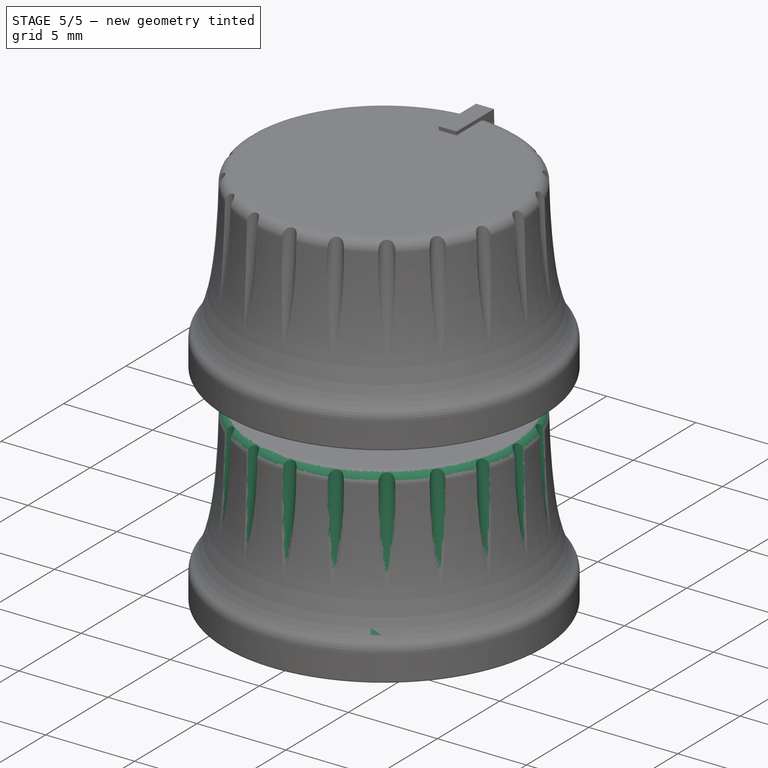
[diagram: stage 5 of 5 — iso view after this stage's code; geometry added in this stage tinted green]
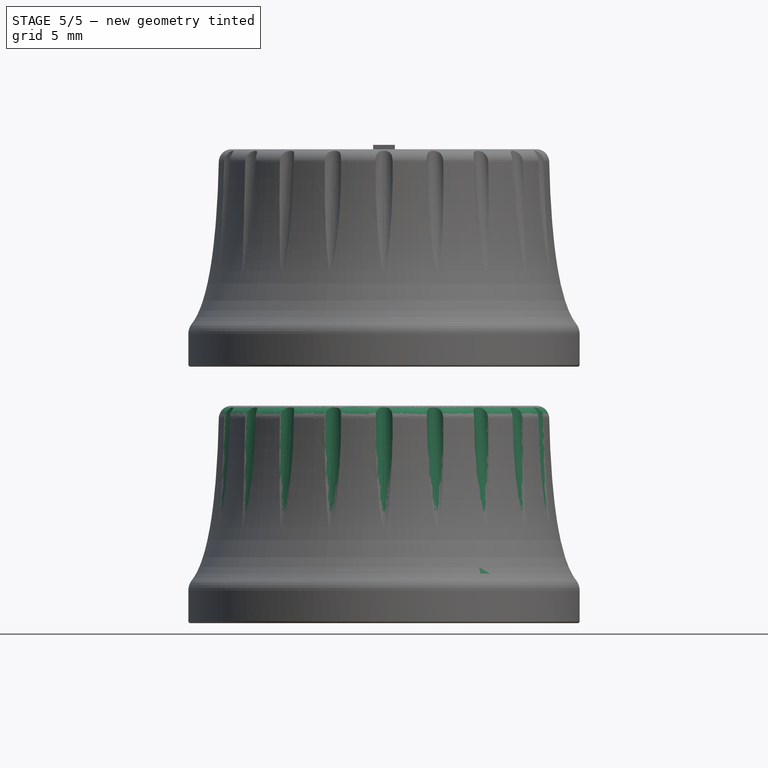
[diagram: stage 5 of 5 — front view after this stage's code; geometry added in this stage tinted green]
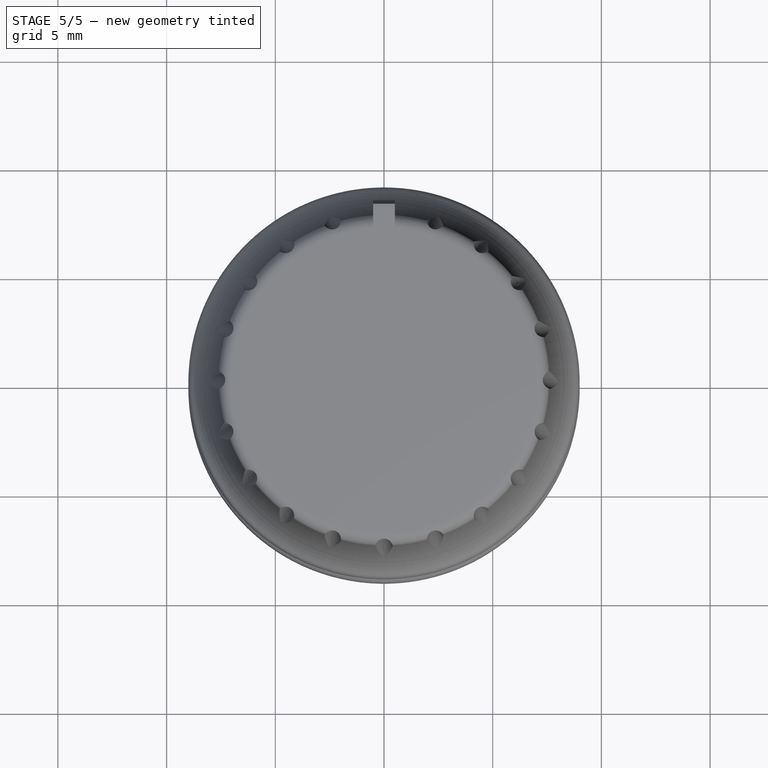
[diagram: stage 5 of 5 — top view after this stage's code; geometry added in this stage tinted green]
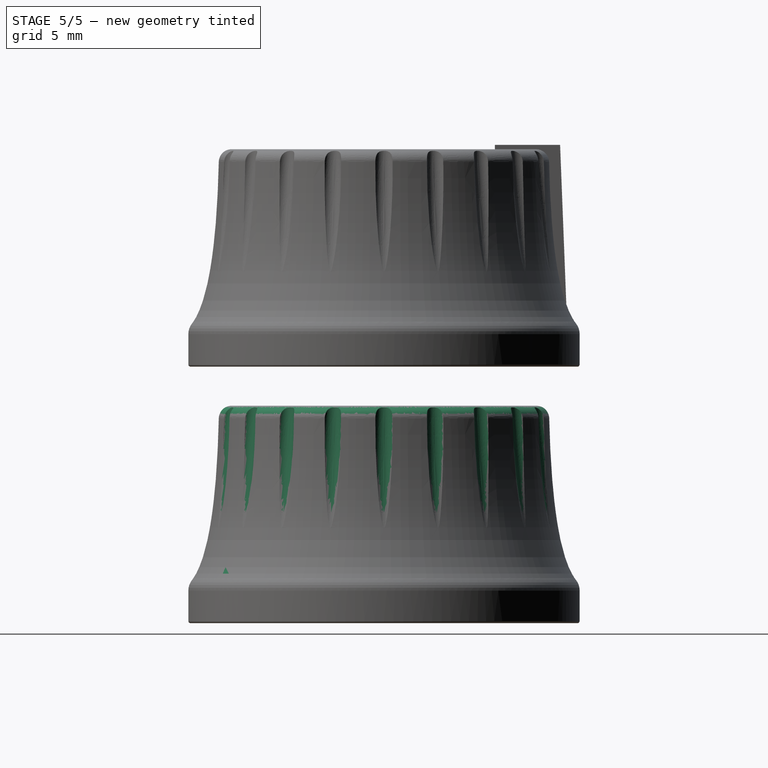
[diagram: stage 5 of 5 — right view after this stage's code; geometry added in this stage tinted green]
FEATURE [PartDesign::Fillet] Fillet002
  Base = -> Fillet001 [Edge151,Edge149,Edge150,Edge152,Edge153,Edge154,Edge156,Edge157,Edge155,Edge129,Edge128,Edge130,Edge132,Edge131,Edge133,Edge134,Edge135,Edge127,Face10,Face18,Face30,Face17,Edge55,Face1]
  BaseFeature = -> Fillet001
  Placement = pos=(0,0,0) rot=(1,0,0;1.5708rad)
  Radius = 0.4
FEATURE [PartDesign::Fillet] Fillet003
  Base = -> Fillet002 [Edge348]
  BaseFeature = -> Fillet002
  Placement = pos=(0,0,0) rot=(1,0,0;1.5708rad)
  Radius = 0.6
FEATURE [PartDesign::Fillet] Fillet004
  Base = -> Fillet003 [Edge9]
  BaseFeature = -> Fillet003
  Placement = pos=(0,0,0) rot=(1,0,0;1.5708rad)
  Radius = 0.1
FEATURE [PartDesign::Fillet] Fillet005
  Base = -> Fillet004 [Edge8]
  BaseFeature = -> Fillet004
  Placement = pos=(0,0,0) rot=(1,0,0;1.5708rad)
  Radius = 0.2
FEATURE [PartDesign::Line] DatumLine
  AttacherType = Attacher::AttachEngineLine
  AttachmentOffset = pos=(0,9.1,0) rot=(1,0,0;0.139626rad)
  MapMode = 42
  Placement = pos=(3.79193e-08,9.1,0) rot=(1,0,0;0.139626rad)
FEATURE [PartDesign::CoordinateSystem] Local_CS
  AttacherType = Attacher::AttachEngine3D
  MapMode = 2
  Placement = pos=(3.79193e-08,9.1,-2e-16) rot=(1,0,0;0.139626rad)
  Support = -> [DatumLine]
FEATURE [PartDesign::Plane] DatumPlane003
  Length = 27.1066
  MapMode = 4
  Placement = pos=(3.79193e-08,9.1,-2e-16) rot=(0.602403,0.523661,0.602403;2.1768rad)
  ResizeMode = 0
  Support = -> [DatumLine]
  Width = 27.1066
FEATURE [Sketcher::SketchObject] Sketch005
  MapMode = 5
  Placement = pos=(3.79193e-08,9.1,-2e-16) rot=(0.602403,0.523661,0.602403;2.1768rad)
  Support = -> [DatumPlane003]
  sketch-geometry (8):
    g0: LineSegment StartX=0 StartY=2.1 StartZ=0 EndX=0 EndY=10.1 EndZ=0
    g1: LineSegment StartX=0 StartY=10.1 StartZ=0 EndX=-0.4 EndY=10.1 EndZ=0
    g2: Circle [constr] CenterX=-0.4 CenterY=10.1 CenterZ=0 NormalX=0 NormalY=0 NormalZ=1 AngleXU=0 Radius=0.9
    g3: Circle [constr] CenterX=-0.8 CenterY=3.9 CenterZ=0 NormalX=0 NormalY=0 NormalZ=1 AngleXU=0 Radius=0.9
    g4: Circle [constr] CenterX=0 CenterY=2.1 CenterZ=0 NormalX=0 NormalY=0 NormalZ=1 AngleXU=0 Radius=0.9
    g5: BSplineCurve PolesCount=3 KnotsCount=2 Degree=2 IsPeriodic=0
    g6: GeomPoint [constr] X=-0.4 Y=10.1 Z=0
    g7: GeomPoint [constr] X=0 Y=2.1 Z=0
  constraints (19):
    c: PointOnObject(g0,g-2)
    c: PointOnObject(g0,g-2)
    c: Coincident(g1,g0)
    c: Horizontal(g1)
    c: Coincident(g5,g1)
    c: Radius(g2) = 0.9
    c: Equal(g2,g3)
    c: Equal(g2,g4)
    c: InternalAlignment(g2,g5)
    c: InternalAlignment(g3,g5)
    c: InternalAlignment(g4,g5)
    c: InternalAlignment(g6,g5)
    c: InternalAlignment(g7,g5)
    c: Coincident(g5,g0)
    c: DistanceX(g1,g1) = 0.4
    c: DistanceY(g0,g0) = 8
    c: DistanceY(g-1,g0) = 2.1
    c: DistanceY(g-1,g3) = 3.9
    c: DistanceX(g3,g-1) = 0.8
FEATURE [PartDesign::Groove] Groove
  Angle = 360
  Axis = (0,-0.139173,0.990268)
  Base = (3.79193e-08,9.1,0)
  BaseFeature = -> Fillet005
  Placement = pos=(0,0,0) rot=(1,0,0;1.5708rad)
  Profile = -> Sketch005
  ReferenceAxis = -> DatumLine
  Reversed = true
FEATURE [PartDesign::PolarPattern] PolarPattern001
  Angle = 360
  Axis = -> Z_Axis
  BaseFeature = -> Groove
  Occurrences = 20
  Originals = -> [Groove]
  Placement = pos=(0,0,0) rot=(1,0,0;1.5708rad)
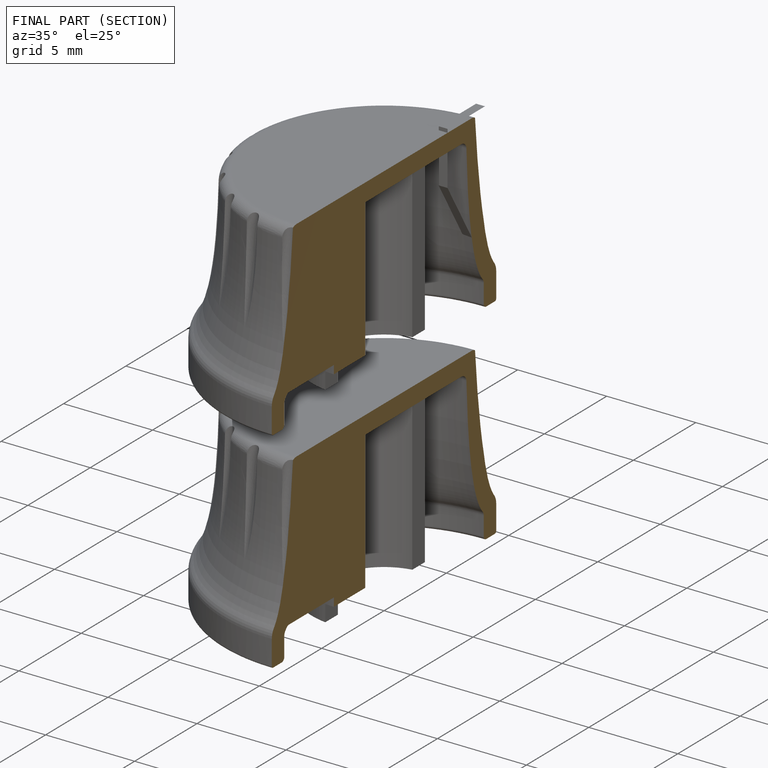
[diagram: finished part — half-section view (interior)]
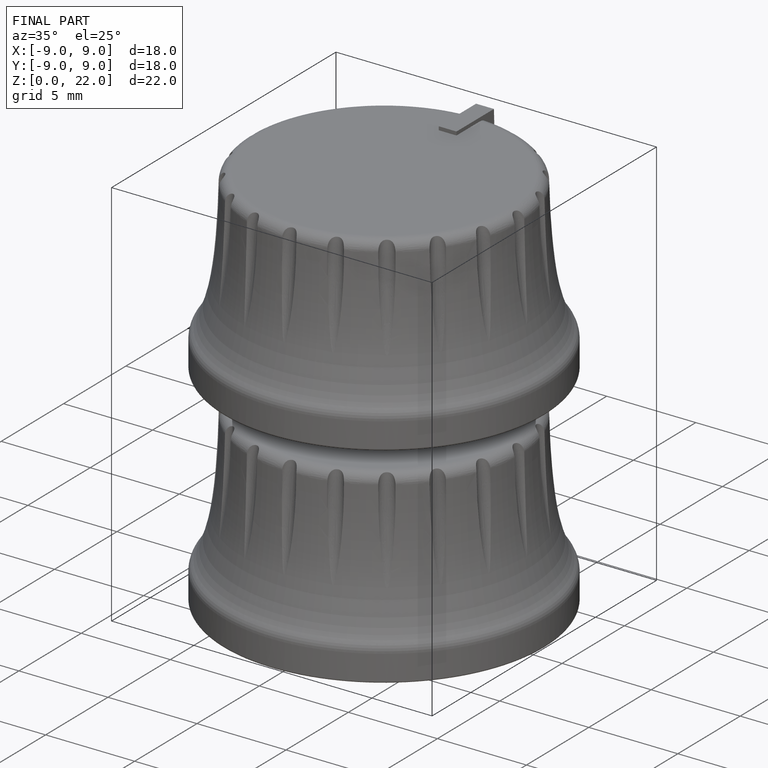
[diagram: finished part — iso view with bounding-box wireframe]
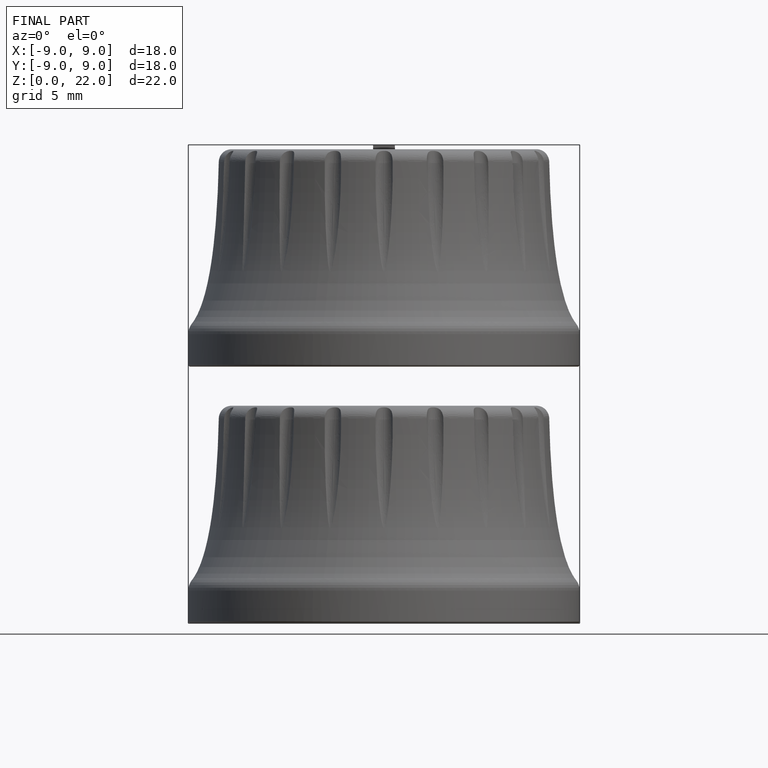
[diagram: finished part — front view with bounding-box wireframe]
